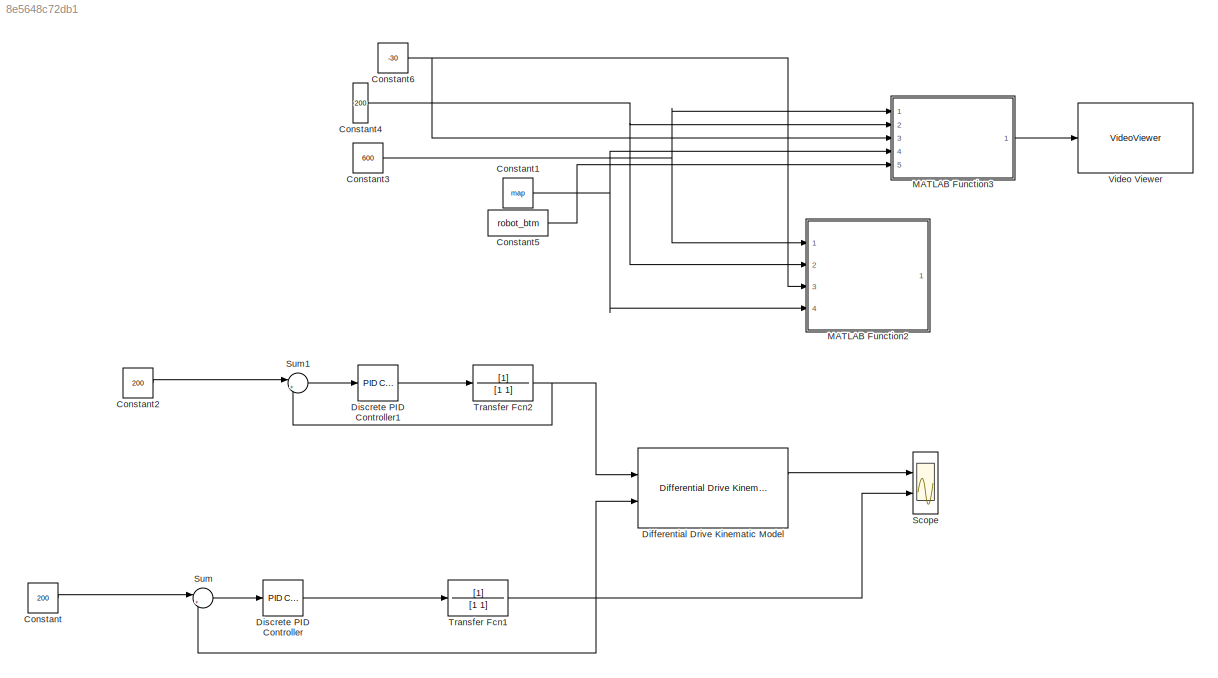
MODEL slx_8e5648c72db1
KIND model
CONFIG AbsTol = auto
CONFIG EnableMultiTasking = off
CONFIG FixedStep = auto
CONFIG MaxStep = auto
CONFIG MinStep = auto
CONFIG RelTol = 1e-3
CONFIG SampleTimeConstraint = Unconstrained
CONFIG SolverName = FixedStepAuto
CONFIG StartTime = 0.0
CONFIG StopTime = 10.0
BLOCK [Constant] Constant
  Value = 200
BLOCK [Constant] Constant1
  Commented = on
  Value = map
BLOCK [Constant] Constant2
  Value = 200
BLOCK [Constant] Constant3
  Commented = on
  Value = 600
BLOCK [Constant] Constant4
  Commented = on
  Value = 200
BLOCK [Constant] Constant5
  Commented = on
  Value = robot_btm
BLOCK [Constant] Constant6
  Commented = on
  Value = -30
BLOCK [Reference] Differential Drive Kinematic Model  REF=robotmobilelib/Differential Drive Kinematic Model
  Ports = [2, 2]
  SourceBlock = robotmobilelib/Differential Drive Kinematic Model
  SourceType = Differential Drive Kinematic Model
BLOCK [Reference] Discrete PID Controller  REF=slpidlib/PID Controller
  Ports = [1, 1]
  SourceBlock = slpidlib/PID Controller
  SourceType = PID 1dof
BLOCK [Reference] Discrete PID Controller1  REF=slpidlib/PID Controller
  Ports = [1, 1]
  SourceBlock = slpidlib/PID Controller
  SourceType = PID 1dof
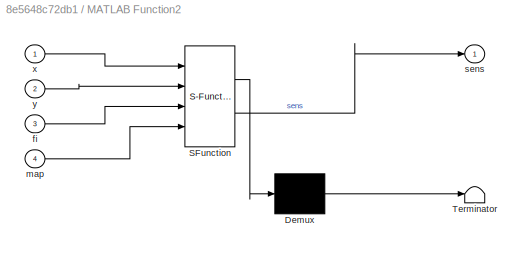
BLOCK [SubSystem] MATLAB Function2
  Commented = on
  ErrorFcn = Stateflow.Translate.translate
  PermitHierarchicalResolution = ExplicitOnly
  Ports = [4, 1]
  SFBlockType = MATLAB Function
  TreatAsAtomicUnit = on
BLOCK [Demux] MATLAB Function2/ Demux 
  Outputs = 1
  Ports = [1, 1]
BLOCK [S-Function] MATLAB Function2/ SFunction 
  EnableBusSupport = on
  FunctionName = sf_sfun
  PortCounts = [4 2]
  Ports = [4, 2]
  SFcnIsStateOwnerBlock = off
  SFunctionDeploymentMode = off
  Tag = Stateflow S-Function 3
BLOCK [Terminator] MATLAB Function2/ Terminator 
BLOCK [Inport] MATLAB Function2/fi
  Port = 3
BLOCK [Inport] MATLAB Function2/map
  Port = 4
BLOCK [Outport] MATLAB Function2/sens
BLOCK [Inport] MATLAB Function2/x
BLOCK [Inport] MATLAB Function2/y
  Port = 2
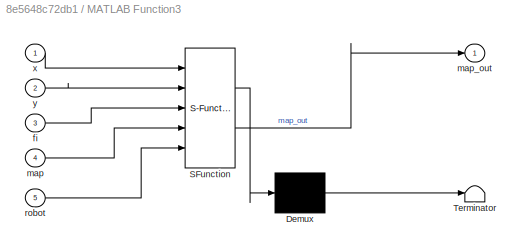
BLOCK [SubSystem] MATLAB Function3
  Commented = on
  ErrorFcn = Stateflow.Translate.translate
  PermitHierarchicalResolution = ExplicitOnly
  Ports = [5, 1]
  SFBlockType = MATLAB Function
  TreatAsAtomicUnit = on
BLOCK [Demux] MATLAB Function3/ Demux 
  Outputs = 1
  Ports = [1, 1]
BLOCK [S-Function] MATLAB Function3/ SFunction 
  EnableBusSupport = on
  FunctionName = sf_sfun
  PortCounts = [5 2]
  Ports = [5, 2]
  SFcnIsStateOwnerBlock = off
  SFunctionDeploymentMode = off
  Tag = Stateflow S-Function 4
BLOCK [Terminator] MATLAB Function3/ Terminator 
BLOCK [Inport] MATLAB Function3/fi
  Port = 3
BLOCK [Inport] MATLAB Function3/map
  Port = 4
BLOCK [Outport] MATLAB Function3/map_out
BLOCK [Inport] MATLAB Function3/robot
  Port = 5
BLOCK [Inport] MATLAB Function3/x
BLOCK [Inport] MATLAB Function3/y
  Port = 2
BLOCK [Scope] Scope
  Floating = off
  NumInputPorts = 2
  Ports = [2]
  ScopeSpecificationString = Simulink.scopes.TimeScopeBlockCfg('CurrentConfiguration', extmgr.ConfigurationSet(extmgr.Configuration('Core','General UI',true),extmgr.Configuration('Core','Source UI',true),extmgr.Configuration('Sources','WiredSimulink',true),extmgr.Configuration('Visuals','Time Domain',true,'SerializedDisplays',{struct('MinYLimReal','-24.99885','MaxYLimReal','224.98963','YLabelReal','','MinYLimMag','0.00000','M...<+1495ch>
BLOCK [Sum] Sum
  Inputs = |+-
  Ports = [2, 1]
BLOCK [Sum] Sum1
  Inputs = |+-
  Ports = [2, 1]
BLOCK [TransferFcn] Transfer Fcn1
  Denominator = [1 1]
BLOCK [TransferFcn] Transfer Fcn2
  Denominator = [1 1]
BLOCK [VideoViewer] Video Viewer
  Commented = on
  FigPos = [2056 1308 1920 985]
  Ports = [1]
  ScopeSpecificationString = vipscopes.VideoViewerScopeCfg('CurrentConfiguration', extmgr.ConfigurationSet(extmgr.Configuration('Core','General UI',true),extmgr.Configuration('Core','Source UI',true),extmgr.Configuration('Sources','WiredSimulink',true),extmgr.Configuration('Sources','SimulinkEvent',false),extmgr.Configuration('Sources','Simulink',false),extmgr.Configuration('Sources','File',false),extmgr.Configuration('Source...<+1703ch>
NET Constant1:1 -> MATLAB Function2:4, MATLAB Function3:4
LINE Constant2:1 -> Sum1:1
NET Constant3:1 -> MATLAB Function2:1, MATLAB Function3:1
NET Constant4:1 -> MATLAB Function2:2, MATLAB Function3:2
LINE Constant5:1 -> MATLAB Function3:5
NET Constant6:1 -> MATLAB Function2:3, MATLAB Function3:3
LINE Constant:1 -> Sum:1
LINE Differential Drive Kinematic Model:1 -> Scope:1
LINE Discrete PID Controller1:1 -> Transfer Fcn2:1
LINE Discrete PID Controller:1 -> Transfer Fcn1:1
LINE MATLAB Function3:1 -> Video Viewer:1
LINE Sum1:1 -> Discrete PID Controller1:1
LINE Sum:1 -> Discrete PID Controller:1
NET Transfer Fcn1:1 -> Differential Drive Kinematic Model:2, Scope:2, Sum:2
NET Transfer Fcn2:1 -> Differential Drive Kinematic Model:1, Sum1:2
note: NET lines group one-source signal fan-out (src -> all destinations, sorted); 1:1 wires keep LINE
CHART MATLAB Function2 states=1 transitions=1
  STATE_LABEL 'eML_blk_kernel()'
  STATE_LABEL 'SCRIPT:\nfunction sens = sensor_detec(x, y, fi, map)\nsensor_loc = [10,10;\n              20,10;\n              30,10;\n              40,10;\n              50,10;\n              60,10;\n              70,10;\n              80,10;\n              90,10;\n              100,10]\nsens = zeros(10);\nfor i = 1:10\n    %% sensor is over black line\n    if(map(x, y))\n        sens(i)\n    end\nend\n\ny = sens;\n'
CHART MATLAB Function3 states=1 transitions=1
  STATE_LABEL 'eML_blk_kernel()'
  STATE_LABEL 'SCRIPT:\nfunction map_out = Draw_robot(x, y, fi, map, robot)\nrobot = imrotate(robot, fi);\n[x_s,y_s] = size(robot);\nmap(int32(x-x_s/2 + 1):int32(x + x_s/2), int32(y-y_s/2+1):int32(y+y_s/2)) = robot;\n\nmap_out = map;\n'
CHART  states=0 transitions=0
CHART  states=0 transitions=0
